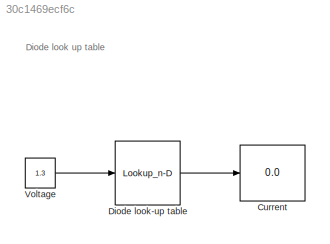
MODEL slx_30c1469ecf6c
KIND model
CONFIG AbsTol = auto
CONFIG EnableMultiTasking = off
CONFIG FixedStep = auto
CONFIG MaxStep = auto
CONFIG MinStep = auto
CONFIG RelTol = 1e-3
CONFIG SampleTimeConstraint = Unconstrained
CONFIG SolverName = VariableStepAuto
CONFIG StartTime = 0.0
CONFIG StopTime = 10.0
BLOCK [Display] Current
  Decimation = 1
  Ports = [1]
BLOCK [Lookup_n-D] Diode look-up table
  BreakpointsForDimension1 = [-17.0 -15.0 -13.0 -11.0 -9.0 -7.0 -5.0 0 0.1 0.2 0.3 0.4 0.6 0.8 1.0 1.2 1.4 1.6 1.8 2.0 2.2 2.4]
  InputPortMap = u0
  InternalRulePriority = Speed
  NumberOfTableDimensions = 1
  Ports = [1, 1]
  RndMeth = Simplest
  Table = [-9 -7 -5 -4 -3 -2 -1 0 0 0 0 0.5 1 2 3 5 7.5 10 15 20 25 30]
BLOCK [Constant] Voltage
  Value = 1.3
ANNOTATION (root): Diode look up table
LINE Diode look-up table:1 -> Current:1
LINE Voltage:1 -> Diode look-up table:1
